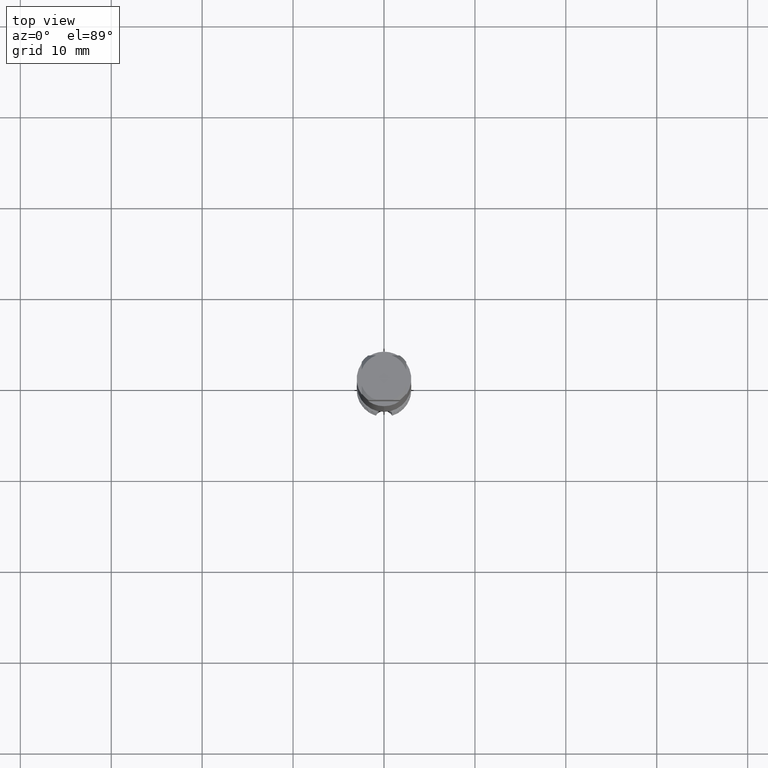
[diagram: clean part render]
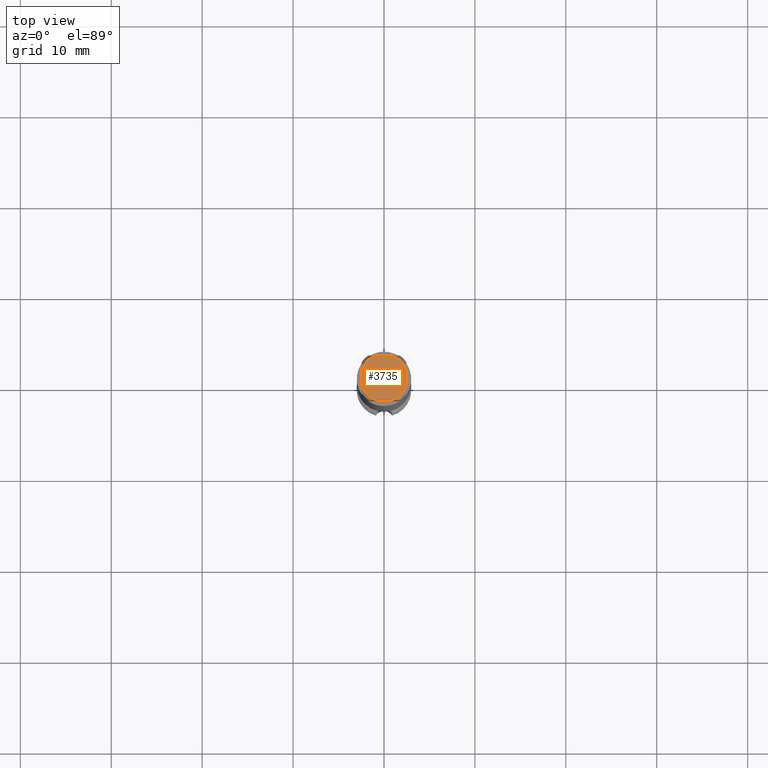
[diagram: same view with one face highlighted and labeled with its STEP entity id]
A machine part, top view. The second image highlights one B-rep face of the part: STEP entity #3735.
In plain terms, the highlighted planar face has unit normal (-0, 0, 1).
Its self-contained STEP definition (entity closure, byte-faithful):
#2411=VERTEX_POINT('',#7178);
#2467=EDGE_CURVE('',#6717,#5607,#7238,.T.);
#3165=EDGE_CURVE('',#6717,#7095,#8003,.T.);
#3603=VERTEX_POINT('',#8484);
#3735=ADVANCED_FACE('',(#8633),#8634,.T.);
#3937=EDGE_CURVE('',#4867,#3603,#8851,.T.);
#4133=EDGE_CURVE('',#4867,#2411,#9060,.T.);
#4275=EDGE_CURVE('',#6387,#2411,#9217,.T.);
#4571=VERTEX_POINT('',#9533);
#4867=VERTEX_POINT('',#9847);
#5607=VERTEX_POINT('',#10662);
#6019=EDGE_CURVE('',#4571,#7095,#11110,.T.);
#6387=VERTEX_POINT('',#11518);
#6717=VERTEX_POINT('',#11881);
#6759=EDGE_CURVE('',#6387,#5607,#11926,.T.);
#6899=EDGE_CURVE('',#4571,#3603,#12076,.T.);
#7095=VERTEX_POINT('',#12286);
#7178=CARTESIAN_POINT('',(0.87034475927646,-2.45,0.0));
#7238=CIRCLE('',#12500,2.6);
#8003=LINE('',#13798,#13799);
#8484=CARTESIAN_POINT('',(-2.45,-0.87034475927646,0.0));
#8633=FACE_OUTER_BOUND('',#14910,.T.);
#8634=PLANE('',#14911);
#8851=CIRCLE('',#15286,2.6);
#9060=LINE('',#15733,#15734);
#9217=CIRCLE('',#16008,2.6);
#9533=CARTESIAN_POINT('',(-2.45,0.87034475927646,0.0));
#9847=CARTESIAN_POINT('',(-0.87034475927646,-2.45,0.0));
#10662=CARTESIAN_POINT('',(2.45,0.87034475927646,0.0));
#11110=CIRCLE('',#19365,2.6);
#11518=CARTESIAN_POINT('',(2.45,-0.87034475927646,0.0));
#11881=CARTESIAN_POINT('',(0.87034475927646,2.45,0.0));
#11926=LINE('',#20708,#20709);
#12076=LINE('',#20980,#20981);
#12286=CARTESIAN_POINT('',(-0.87034475927646,2.45,0.0));
#12500=AXIS2_PLACEMENT_3D('',#21558,#21559,#21560);
#13798=CARTESIAN_POINT('',(0.0,2.45,0.0));
#13799=VECTOR('',#22679,1.0);
#14910=EDGE_LOOP('',(#23379,#23380,#23381,#23382,#23383,#23384,#23385,#23386));
#14911=AXIS2_PLACEMENT_3D('',#23387,#23388,#23389);
#15286=AXIS2_PLACEMENT_3D('',#23612,#23613,#23614);
#15733=CARTESIAN_POINT('',(0.0,-2.45,0.0));
#15734=VECTOR('',#23807,1.0);
#16008=AXIS2_PLACEMENT_3D('',#23986,#23987,#23988);
#19365=AXIS2_PLACEMENT_3D('',#25938,#25939,#25940);
#20708=CARTESIAN_POINT('',(2.45,0.65,0.0));
#20709=VECTOR('',#26891,1.0);
#20980=CARTESIAN_POINT('',(-2.45,0.65,0.0));
#20981=VECTOR('',#27024,1.0);
#21558=CARTESIAN_POINT('',(0.0,0.0,0.0));
#21559=DIRECTION('',(0.0,0.0,-1.0));
#21560=DIRECTION('',(0.0,1.0,0.0));
#22679=DIRECTION('',(-1.0,0.0,0.0));
#23379=ORIENTED_EDGE('',*,*,#6899,.T.);
#23380=ORIENTED_EDGE('',*,*,#3937,.F.);
#23381=ORIENTED_EDGE('',*,*,#4133,.T.);
#23382=ORIENTED_EDGE('',*,*,#4275,.F.);
#23383=ORIENTED_EDGE('',*,*,#6759,.T.);
#23384=ORIENTED_EDGE('',*,*,#2467,.F.);
#23385=ORIENTED_EDGE('',*,*,#3165,.T.);
#23386=ORIENTED_EDGE('',*,*,#6019,.F.);
#23387=CARTESIAN_POINT('',(0.0,1.3,0.0));
#23388=DIRECTION('',(-0.0,0.0,1.0));
#23389=DIRECTION('',(0.0,-1.0,0.0));
#23612=CARTESIAN_POINT('',(0.0,0.0,0.0));
#23613=DIRECTION('',(0.0,0.0,-1.0));
#23614=DIRECTION('',(0.0,1.0,0.0));
#23807=DIRECTION('',(1.0,0.0,0.0));
#23986=CARTESIAN_POINT('',(0.0,0.0,0.0));
#23987=DIRECTION('',(0.0,0.0,-1.0));
#23988=DIRECTION('',(0.0,1.0,0.0));
#25938=CARTESIAN_POINT('',(0.0,0.0,0.0));
#25939=DIRECTION('',(0.0,0.0,-1.0));
#25940=DIRECTION('',(0.0,1.0,0.0));
#26891=DIRECTION('',(-0.0,1.0,0.0));
#27024=DIRECTION('',(-0.0,-1.0,0.0));